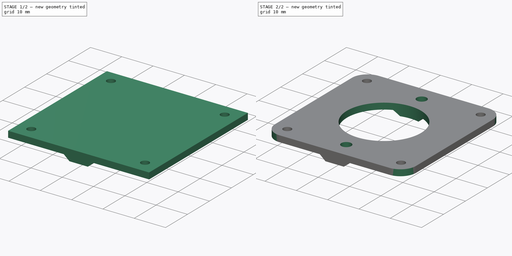
[diagram: build sequence overview — one tinted view per stage of 2, left to right]
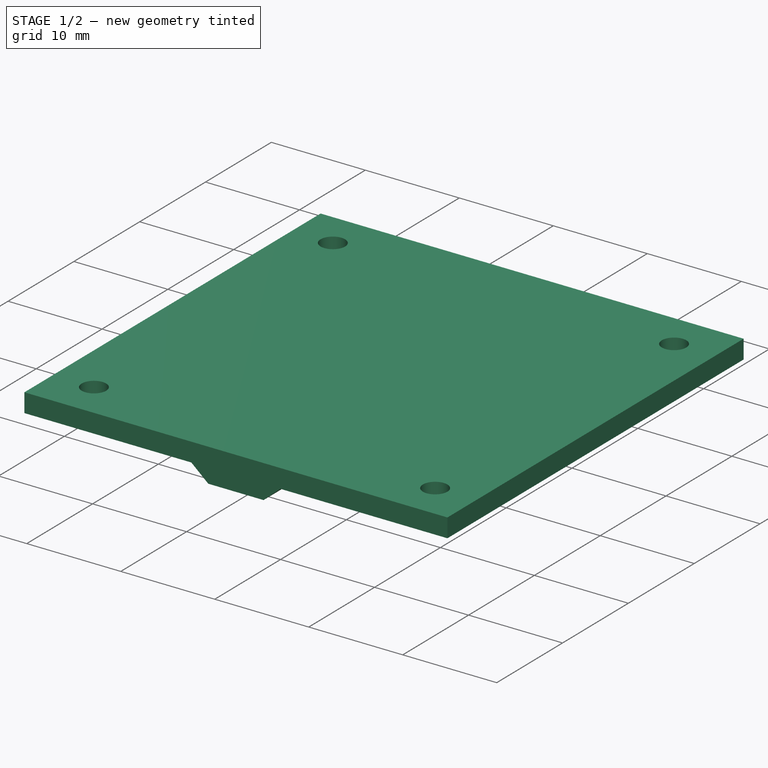
[diagram: stage 1 of 2 — iso view after this stage's code; geometry added in this stage tinted green]
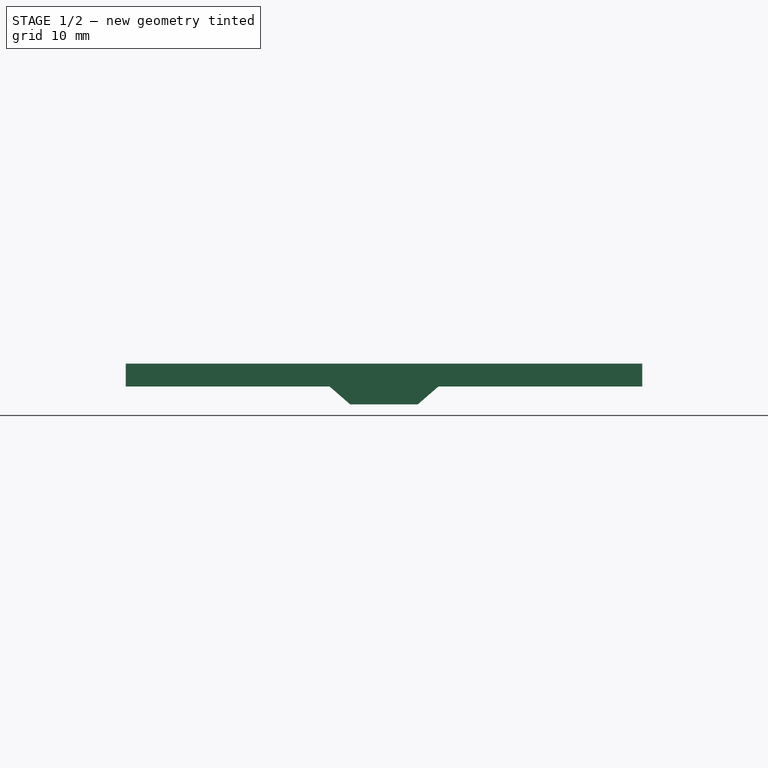
[diagram: stage 1 of 2 — front view after this stage's code; geometry added in this stage tinted green]
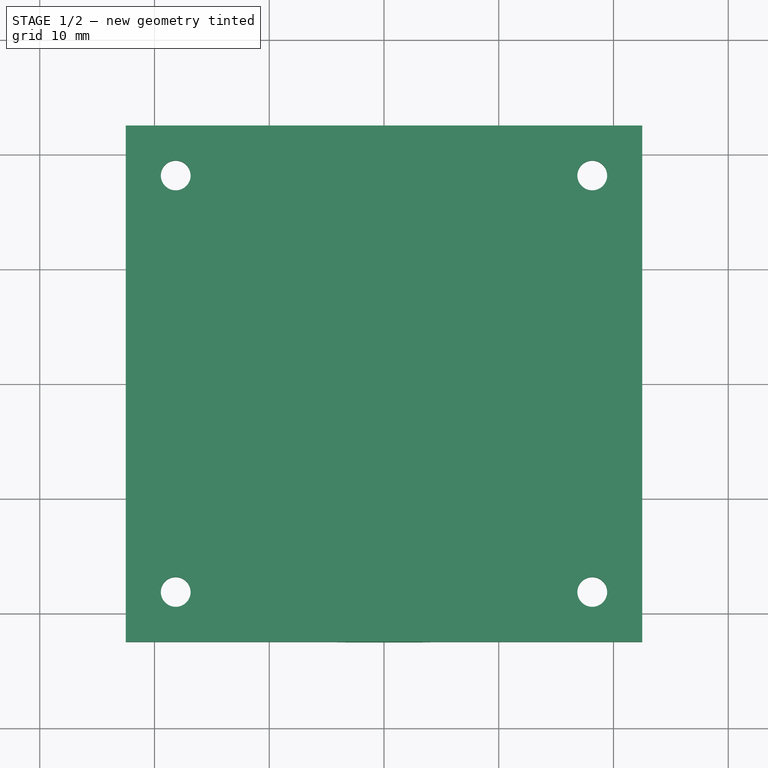
[diagram: stage 1 of 2 — top view after this stage's code; geometry added in this stage tinted green]
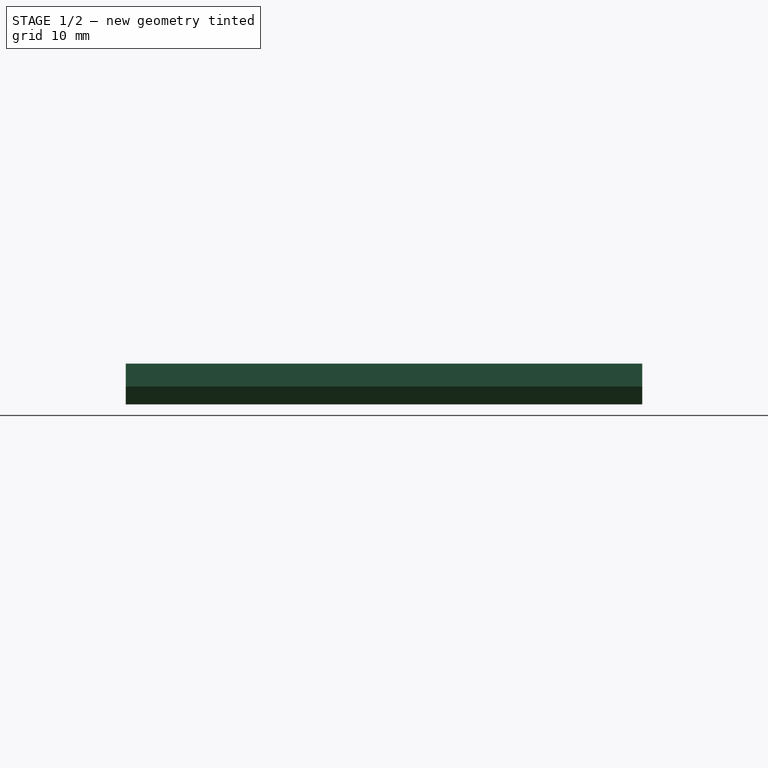
[diagram: stage 1 of 2 — right view after this stage's code; geometry added in this stage tinted green]
FCSTD DOCUMENT  (FreeCAD 0.19R24366 (Git))
Label: v-slot-2020-suporte-ponteH
License: All rights reserved
LicenseURL: http://en.wikipedia.org/wiki/All_rights_reserved
objects: Sketcher::SketchObject×3, PartDesign::Pad×2, PartDesign::Pocket×1, PartDesign::Fillet×1, PartDesign::Body×1
note: 12 computed .brp shape members not serialized (recipe doc carries the construction recipe); baked Part::Feature solids carry a one-line shape summary decoded from their .brp

FEATURE [Sketcher::SketchObject] Sketch
  FullyConstrained = true
  MapMode = 5
  Support = -> [XY_Plane]
  sketch-geometry (14):
    g0: LineSegment StartX=-22.5 StartY=22.5 StartZ=0 EndX=22.5 EndY=22.5 EndZ=0
    g1: LineSegment StartX=22.5 StartY=22.5 StartZ=0 EndX=22.5 EndY=-22.5 EndZ=0
    g2: LineSegment StartX=22.5 StartY=-22.5 StartZ=0 EndX=-22.5 EndY=-22.5 EndZ=0
    g3: LineSegment StartX=-22.5 StartY=-22.5 StartZ=0 EndX=-22.5 EndY=22.5 EndZ=0
    g4: LineSegment StartX=-22.5 StartY=22.5 StartZ=0 EndX=22.5 EndY=-22.5 EndZ=0
    g5: LineSegment StartX=22.5 StartY=22.5 StartZ=0 EndX=-22.5 EndY=-22.5 EndZ=0
    g6: Circle CenterX=-18.15 CenterY=18.15 CenterZ=0 NormalX=0 NormalY=0 NormalZ=1 AngleXU=0 Radius=1.3
    g7: Circle CenterX=-18.15 CenterY=-18.15 CenterZ=0 NormalX=0 NormalY=0 NormalZ=1 AngleXU=0 Radius=1.3
    g8: Circle CenterX=18.15 CenterY=-18.15 CenterZ=0 NormalX=0 NormalY=0 NormalZ=1 AngleXU=0 Radius=1.3
    g9: Circle CenterX=18.15 CenterY=18.15 CenterZ=0 NormalX=0 NormalY=0 NormalZ=1 AngleXU=0 Radius=1.3
    g10: LineSegment StartX=-18.15 StartY=-18.15 StartZ=0 EndX=-18.15 EndY=0 EndZ=0
    g11: LineSegment StartX=-18.15 StartY=18.15 StartZ=0 EndX=-18.15 EndY=0 EndZ=0
    g12: LineSegment StartX=-18.15 StartY=-18.15 StartZ=0 EndX=0 EndY=-18.15 EndZ=0
    g13: LineSegment StartX=18.15 StartY=-18.15 StartZ=0 EndX=0 EndY=-18.15 EndZ=0
  constraints (38):
    c: Coincident(g0,g1)
    c: Coincident(g1,g2)
    c: Coincident(g2,g3)
    c: Coincident(g3,g0)
    c: Horizontal(g0)
    c: Horizontal(g2)
    c: Vertical(g1)
    c: Vertical(g3)
    c: Coincident(g4,g0)
    c: Coincident(g4,g1)
    c: Coincident(g5,g0)
    c: Coincident(g5,g2)
    c: PointOnObject(g-1,g4)
    c: PointOnObject(g-1,g5)
    c: Equal(g3,g0)
    c: DistanceY(g3,g3) = 45
    c: Vertical(g9,g8)
    c: Vertical(g6,g7)
    c: Horizontal(g6,g9)
    c: Horizontal(g8,g7)
    c: Equal(g6,g7)
    c: Equal(g7,g8)
    c: Equal(g8,g9)
    c: Coincident(g10,g7)
    c: PointOnObject(g10,g-1)
    c: Vertical(g10)
    c: Coincident(g11,g6)
    c: Coincident(g11,g10)
    c: Equal(g11,g10)
    c: Coincident(g12,g7)
    c: PointOnObject(g12,g-2)
    c: Horizontal(g12)
    c: Coincident(g13,g8)
    c: Coincident(g12,g13)
    c: Equal(g10,g12)
    c: Equal(g12,g13)
    c: DistanceX(g7,g8) = 36.3
    c: Radius(g9) = 1.3
FEATURE [PartDesign::Pad] Pad
  Direction = (1,1,1)
  Length = 2
  Length2 = 100
  Profile = -> Sketch
  Type = 0
FEATURE [Sketcher::SketchObject] Sketch001
  FullyConstrained = true
  MapMode = 5
  Placement = pos=(0,-22.5,0) rot=(1,0,0;1.5708rad)
  Support = -> [Pad]
  sketch-geometry (6):
    g0: LineSegment StartX=0 StartY=0 StartZ=0 EndX=-4.74 EndY=0 EndZ=0
    g1: LineSegment StartX=-4.74 StartY=0 StartZ=0 EndX=-2.94 EndY=-1.56 EndZ=0
    g2: LineSegment StartX=-2.94 StartY=-1.56 StartZ=0 EndX=0 EndY=-1.56 EndZ=0
    g3: LineSegment StartX=0 StartY=-1.56 StartZ=0 EndX=2.94 EndY=-1.56 EndZ=0
    g4: LineSegment StartX=2.94 StartY=-1.56 StartZ=0 EndX=4.74 EndY=0 EndZ=0
    g5: LineSegment StartX=4.74 StartY=0 StartZ=0 EndX=0 EndY=0 EndZ=0
  constraints (17):
    c: Coincident(g0,g-1)
    c: PointOnObject(g0,g-1)
    c: Coincident(g1,g0)
    c: Coincident(g1,g2)
    c: PointOnObject(g2,g-2)
    c: Horizontal(g2)
    c: Coincident(g3,g2)
    c: Horizontal(g3)
    c: Coincident(g4,g3)
    c: PointOnObject(g4,g-1)
    c: Coincident(g5,g0)
    c: Coincident(g5,g4)
    c: Equal(g0,g5)
    c: Equal(g3,g2)
    c: DistanceX(g1,g3) = 5.88
    c: DistanceX(g0,g4) = 9.48
    c: DistanceY(g1,g0) = 1.56
FEATURE [PartDesign::Pad] Pad001
  BaseFeature = -> Pad
  Direction = (1,1,1)
  Length = 10
  Length2 = 100
  Profile = -> Sketch001
  Reversed = true
  Type = 3
  UpToFace = -> Pad [Face1]
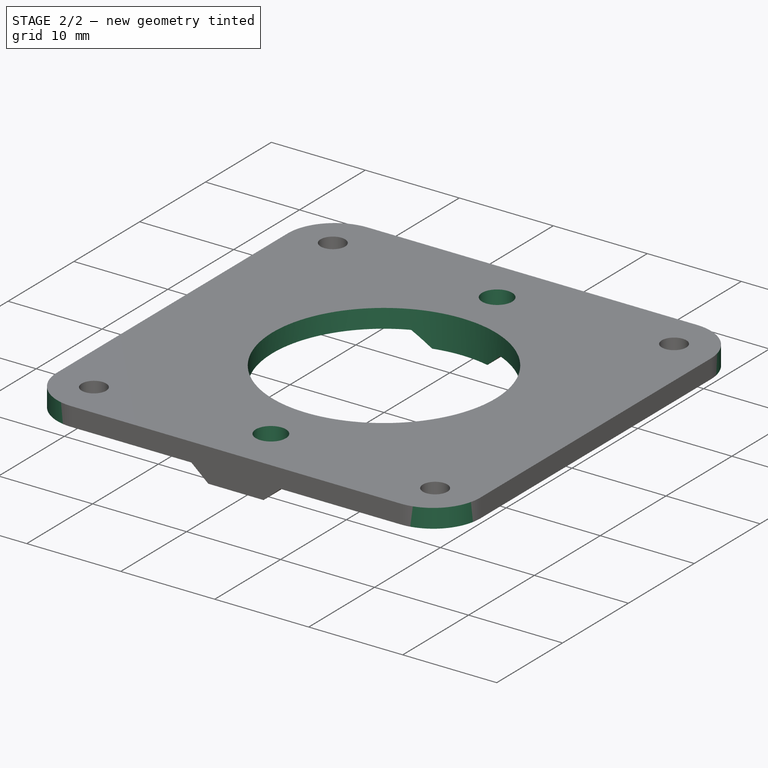
[diagram: stage 2 of 2 — iso view after this stage's code; geometry added in this stage tinted green]
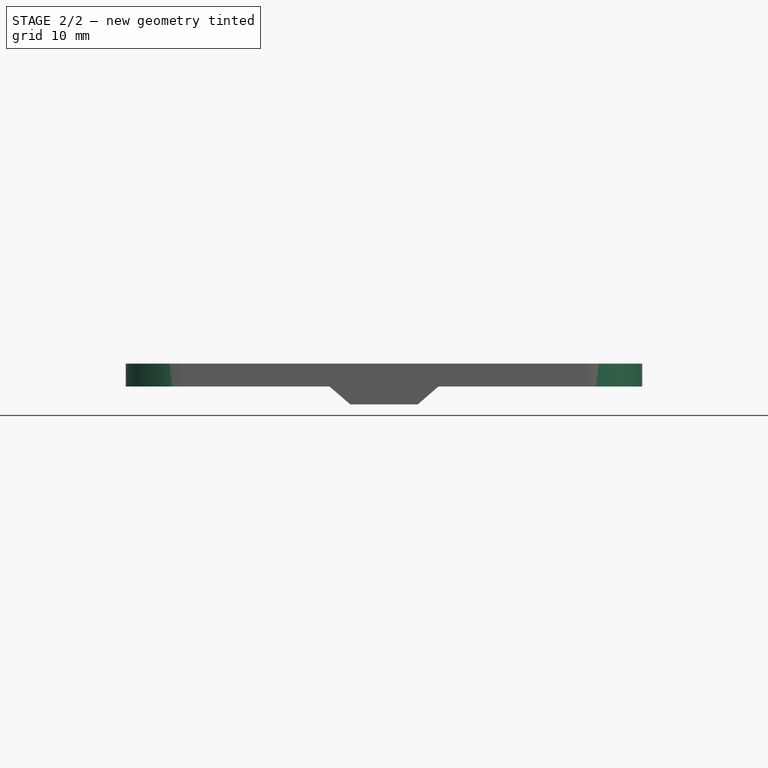
[diagram: stage 2 of 2 — front view after this stage's code; geometry added in this stage tinted green]
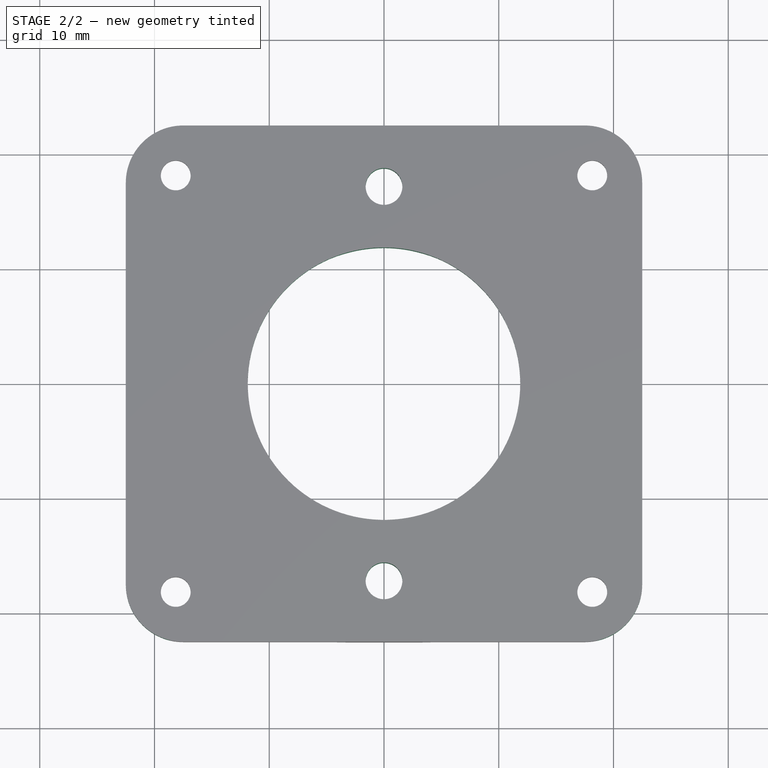
[diagram: stage 2 of 2 — top view after this stage's code; geometry added in this stage tinted green]
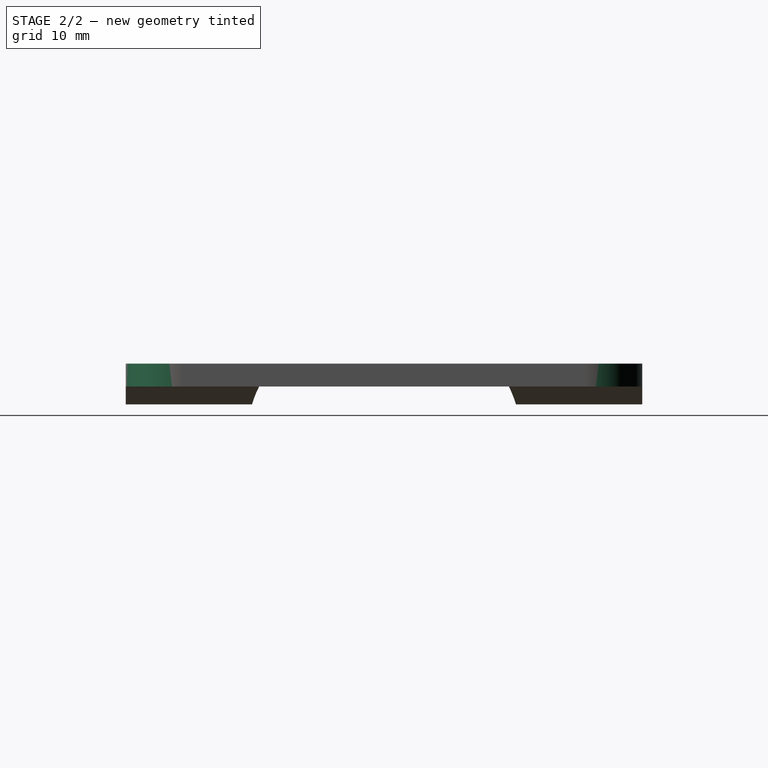
[diagram: stage 2 of 2 — right view after this stage's code; geometry added in this stage tinted green]
FEATURE [Sketcher::SketchObject] Sketch002
  ExternalGeometry = -> [Pad001]
  FullyConstrained = true
  MapMode = 5
  Placement = pos=(0,-3e-16,-1.56) rot=(1,0,0;3.14159rad)
  Support = -> [Pad001]
  sketch-geometry (7):
    g0: Circle CenterX=0 CenterY=0 CenterZ=0 NormalX=0 NormalY=0 NormalZ=1 AngleXU=0 Radius=11.872
    g1: Circle CenterX=0 CenterY=17.186 CenterZ=0 NormalX=0 NormalY=0 NormalZ=1 AngleXU=0 Radius=1.6
    g2: Circle CenterX=0 CenterY=-17.186 CenterZ=0 NormalX=0 NormalY=0 NormalZ=1 AngleXU=0 Radius=1.6
    g3: LineSegment StartX=0 StartY=-17.186 StartZ=0 EndX=0 EndY=0 EndZ=0
    g4: LineSegment StartX=0 StartY=17.186 StartZ=0 EndX=0 EndY=0 EndZ=0
    g5: LineSegment StartX=0 StartY=22.5 StartZ=0 EndX=0 EndY=18.786 EndZ=0
    g6: LineSegment StartX=0 StartY=11.872 StartZ=0 EndX=0 EndY=15.586 EndZ=0
  constraints (19):
    c: Coincident(g0,g-1)
    c: PointOnObject(g1,g-2)
    c: PointOnObject(g2,g-2)
    c: Coincident(g3,g2)
    c: Coincident(g4,g1)
    c: Coincident(g4,g3)
    c: Coincident(g4,g0)
    c: Equal(g3,g4)
    c: Equal(g1,g2)
    c: Radius(g1) = 1.6
    c: DistanceY(g2,g1) = 34.372
    c: Coincident(g5,g-3)
    c: PointOnObject(g6,g4)
    c: PointOnObject(g6,g0)
    c: Equal(g5,g6)
    c: PointOnObject(g6,g1)
    c: PointOnObject(g6,g4)
    c: PointOnObject(g5,g1)
    c: PointOnObject(g5,g-2)
FEATURE [PartDesign::Pocket] Pocket
  BaseFeature = -> Pad001
  Length = 5
  Length2 = 100
  Profile = -> Sketch002
  Type = 1
FEATURE [PartDesign::Fillet] Fillet
  Base = -> Pocket [Edge11,Edge2,Edge8,Edge1]
  BaseFeature = -> Pocket
  Radius = 5
  SupportTransform = false
FEATURE [PartDesign::Body] Body
  Group = -> [Sketch,Pad,Sketch001,Pad001,Sketch002,Pocket,Fillet]
  Origin = -> Origin
  Tip = -> Fillet
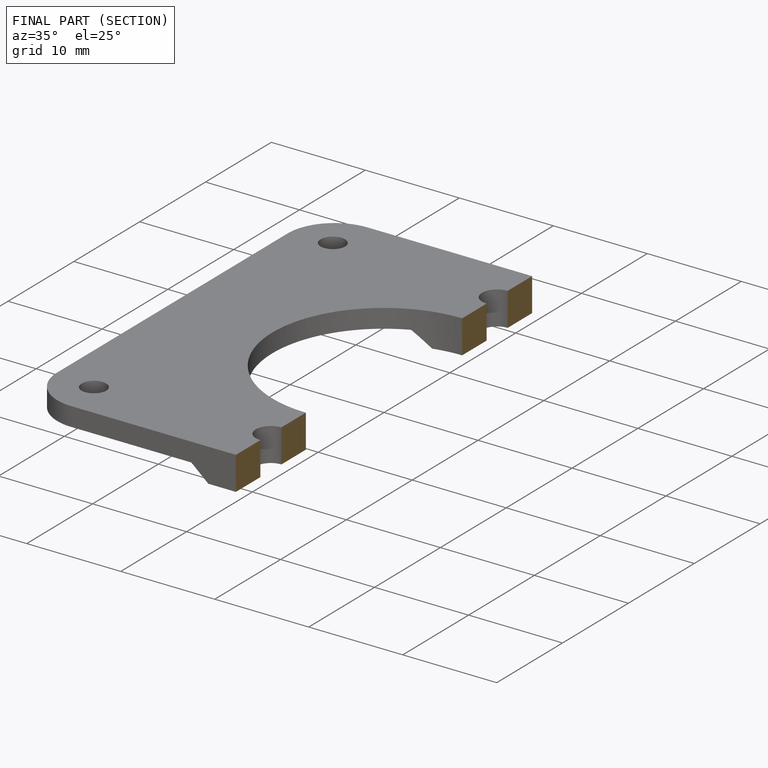
[diagram: finished part — half-section view (interior)]
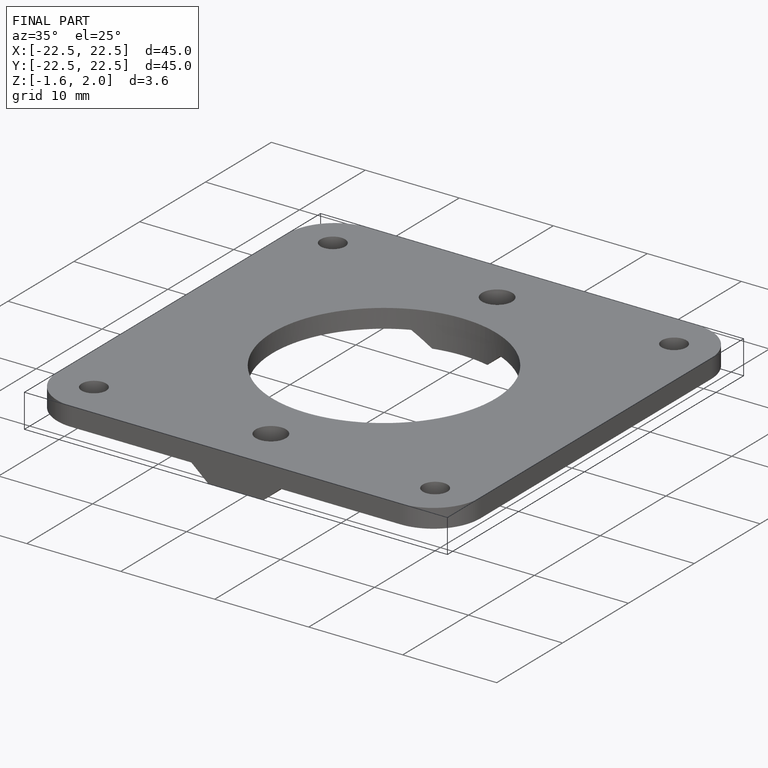
[diagram: finished part — iso view with bounding-box wireframe]
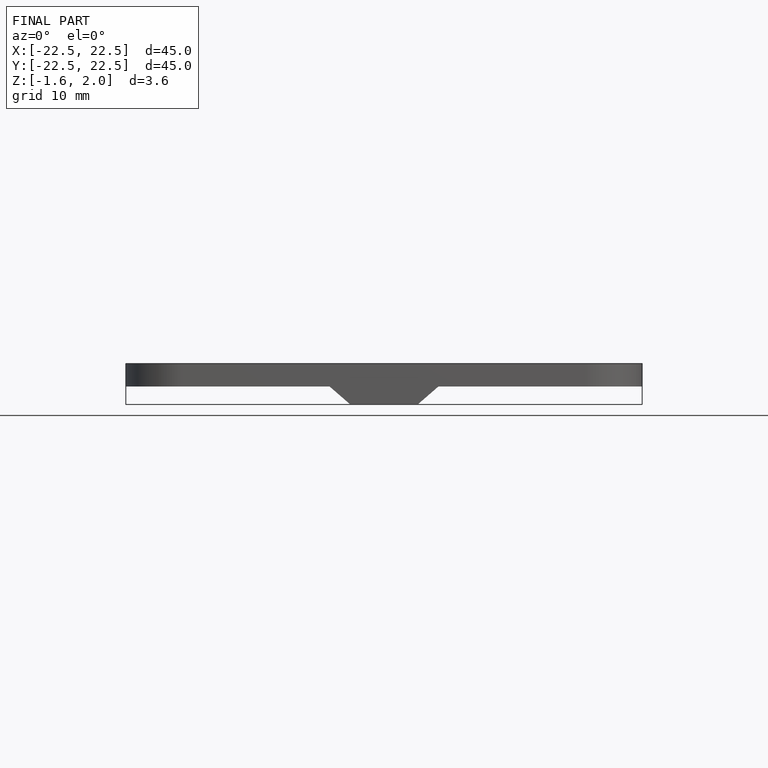
[diagram: finished part — front view with bounding-box wireframe]
